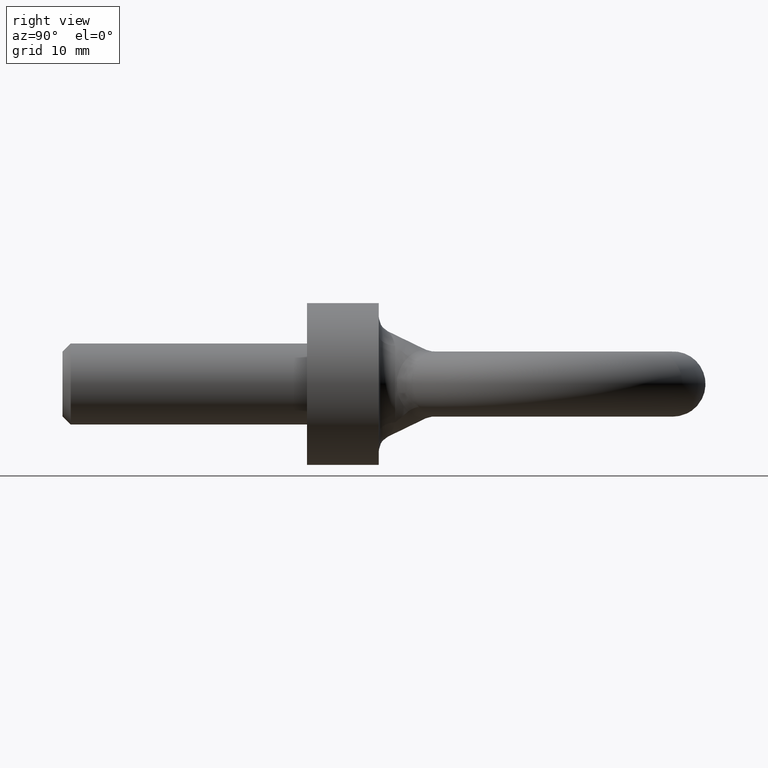
[diagram: clean part render]
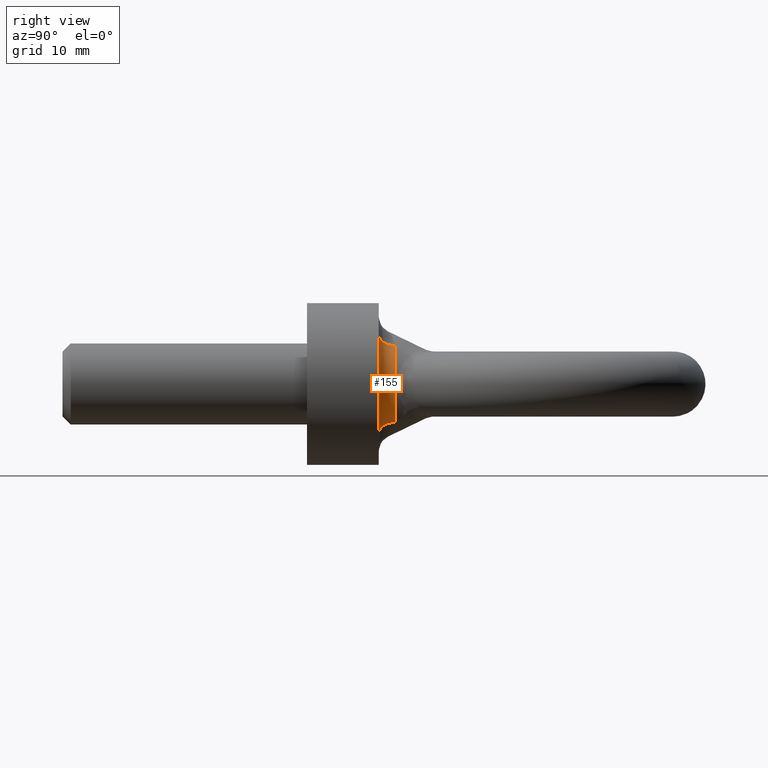
[diagram: same view with one face highlighted and labeled with its STEP entity id]
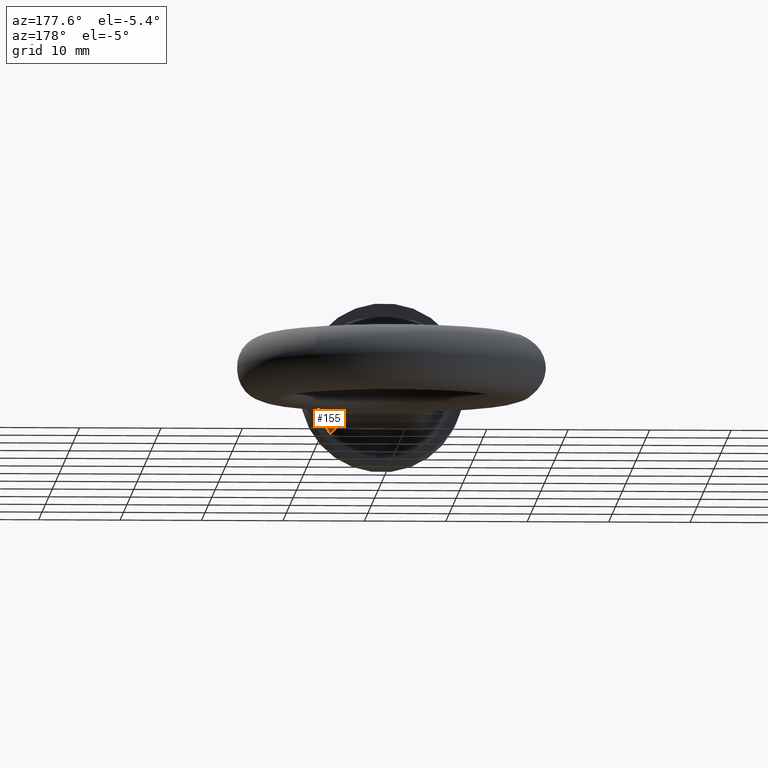
[diagram: same view with one face highlighted and labeled with its STEP entity id]
A machine part, right view. The second image highlights one B-rep face of the part: STEP entity #155.
A second angle (auxiliary view) of the same face is appended — the face is thin or edge-on in the first view.
In plain terms, the highlighted toroidal blend (fillet) surface has major radius 9 mm and minor (blend) radius 2 mm.
Its self-contained STEP definition (entity closure, byte-faithful):
#73=TOROIDAL_SURFACE('',#665,9.,2.);
#155=ADVANCED_FACE('',(#196),#73,.F.);
#196=FACE_OUTER_BOUND('',#238,.T.);
#238=EDGE_LOOP('',(#457,#458,#459,#460));
#280=CIRCLE('',#615,7.);
#291=CIRCLE('',#641,9.);
#308=CIRCLE('',#662,2.);
#310=CIRCLE('',#664,2.);
#457=ORIENTED_EDGE('',*,*,#600,.T.);
#458=ORIENTED_EDGE('',*,*,#525,.F.);
#459=ORIENTED_EDGE('',*,*,#602,.F.);
#460=ORIENTED_EDGE('',*,*,#561,.F.);
#476=VERTEX_POINT('',#791);
#477=VERTEX_POINT('',#793);
#504=VERTEX_POINT('',#1024);
#505=VERTEX_POINT('',#1025);
#525=EDGE_CURVE('',#476,#477,#280,.T.);
#561=EDGE_CURVE('',#504,#505,#291,.T.);
#600=EDGE_CURVE('',#504,#477,#308,.T.);
#602=EDGE_CURVE('',#505,#476,#310,.T.);
#615=AXIS2_PLACEMENT_3D('',#792,#674,#675);
#641=AXIS2_PLACEMENT_3D('',#1023,#728,#729);
#662=AXIS2_PLACEMENT_3D('',#1482,#772,#773);
#664=AXIS2_PLACEMENT_3D('',#1508,#776,#777);
#665=AXIS2_PLACEMENT_3D('',#1509,#778,#779);
#674=DIRECTION('',(-1.1682767539609E-18,1.,0.));
#675=DIRECTION('',(1.,0.,0.));
#728=DIRECTION('',(1.1682767539609E-18,-1.,0.));
#729=DIRECTION('',(1.,0.,0.));
#772=DIRECTION('',(-0.674878611723102,0.,-0.737928763119245));
#773=DIRECTION('',(-0.737928763119245,0.,0.674878611723102));
#776=DIRECTION('',(0.674878611723102,0.,-0.737928763119245));
#777=DIRECTION('',(-0.737928763119245,0.,-0.674878611723102));
#778=DIRECTION('',(1.1682767539609E-18,-1.,0.));
#779=DIRECTION('',(1.,0.,0.));
#791=CARTESIAN_POINT('',(5.16550134183472,10.8,4.72415028206171));
#792=CARTESIAN_POINT('',(4.90676236663578E-18,10.8,0.));
#793=CARTESIAN_POINT('',(5.16550134183471,10.8,-4.72415028206171));
#1023=CARTESIAN_POINT('',(7.24331587455758E-18,8.8,0.));
#1024=CARTESIAN_POINT('',(6.6413588680732,8.8,-6.07390750550792));
#1025=CARTESIAN_POINT('',(6.64135886807321,8.8,6.07390750550792));
#1482=CARTESIAN_POINT('',(6.6413588680732,10.8,-6.07390750550792));
#1508=CARTESIAN_POINT('',(6.64135886807321,10.8,6.07390750550792));
#1509=CARTESIAN_POINT('',(4.90676236663578E-18,10.8,0.));